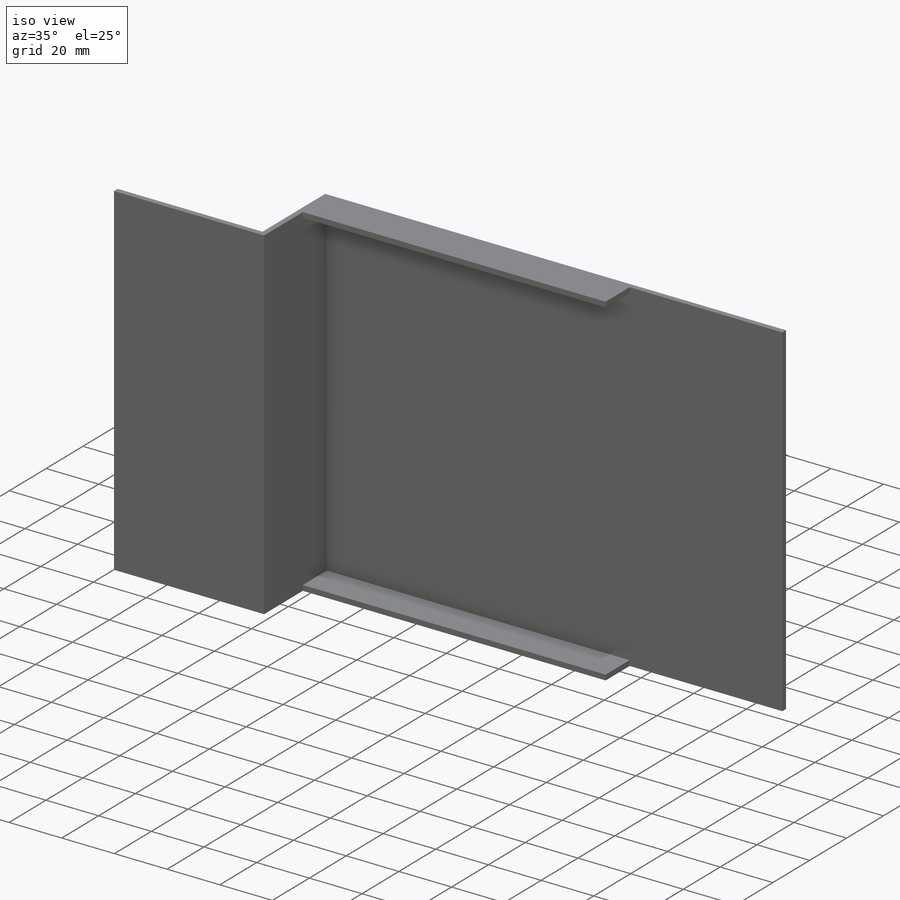
[diagram: iso view]
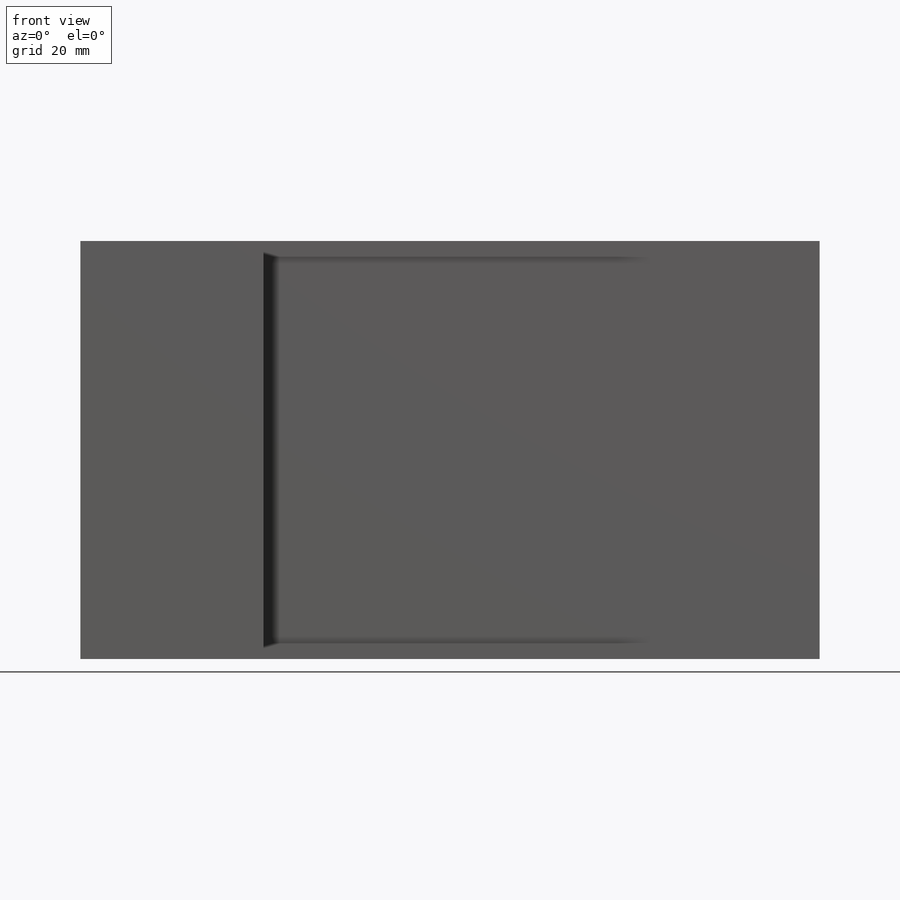
[diagram: front view]
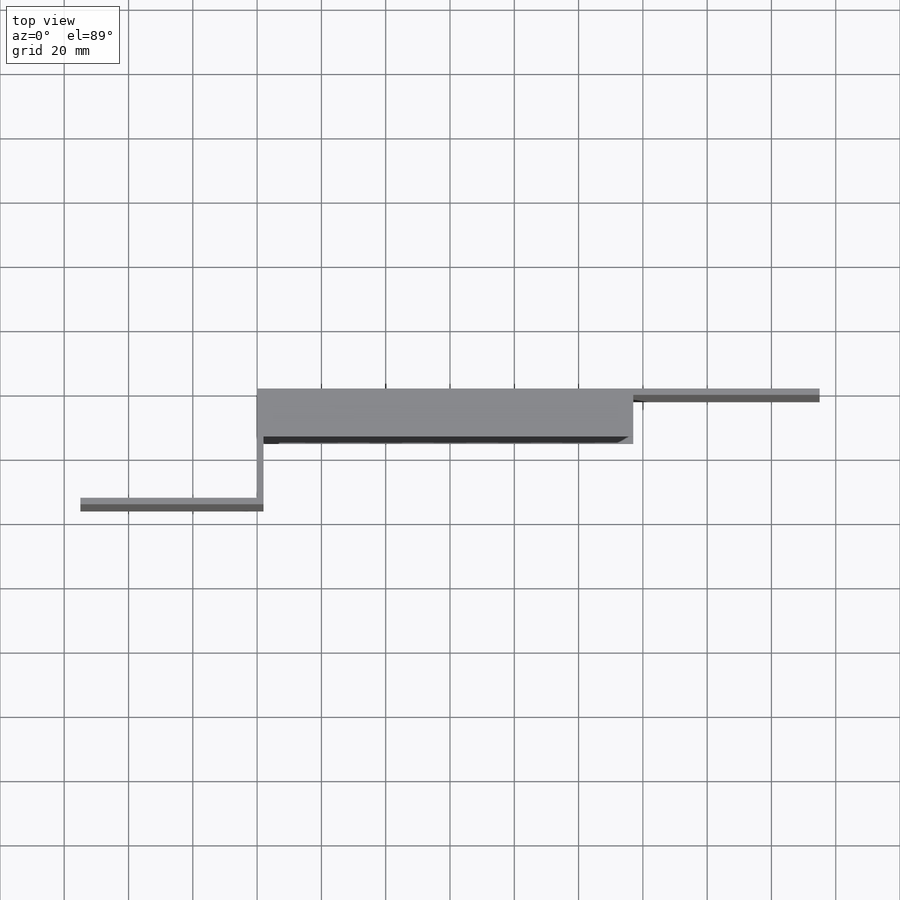
[diagram: top view]
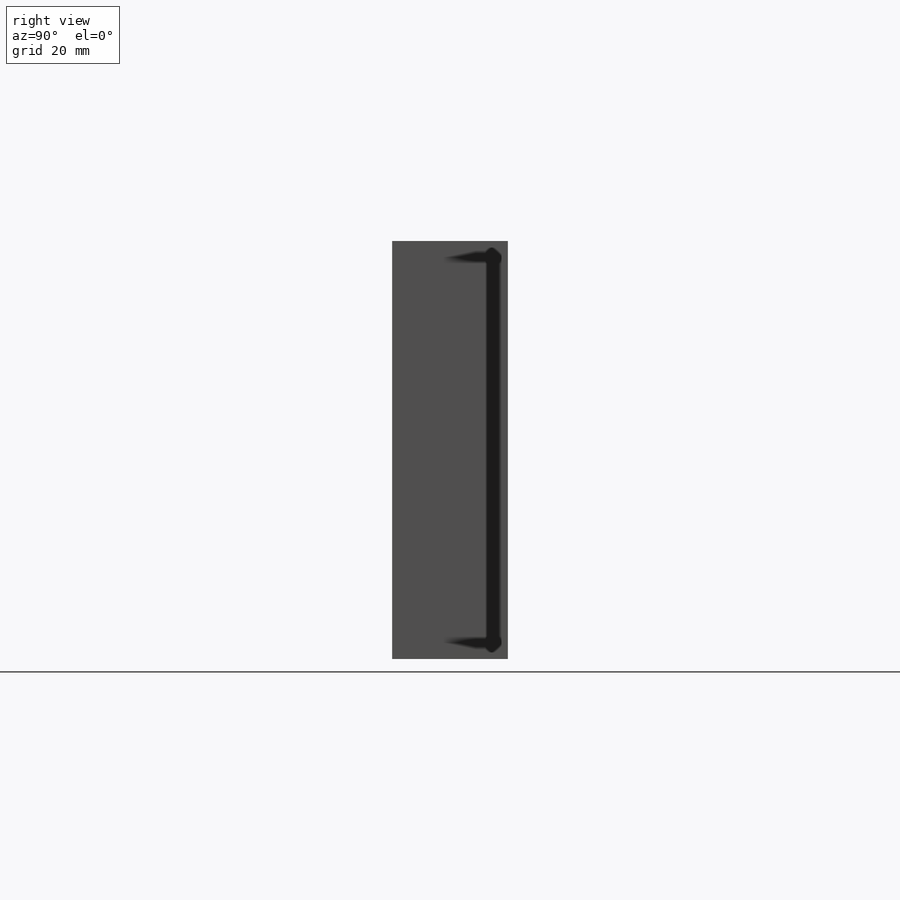
[diagram: right view]
SOLIDWORKS PART (.sldprt)
format: sldprt  version: not decoded by parser v0  size: 155,648 bytes
history: native  units: mm
features: sketch x4, extrude x4, material x1 (+11 scaffold rows collapsed)
feature tree (20):
  scaffold x11  (default folders/planes/origin — collapsed)
  material  "Material <not specified>"
  sketch  "Sketch1"  dims[D1=175.0mm D2=130.0mm]
  extrude  "Boss-Extrude1"  Depth=2mm
  sketch  "Sketch2"  dims[D1=2.0mm]
  extrude  "Boss-Extrude2"  Depth=34mm
  sketch  "Sketch3"  dims[D1=2.0mm]
  extrude  "Boss-Extrude4"  Depth=55mm
  sketch  "Sketch5"  dims[D1=2.0mm D2=0.0mm D3=115.0mm D4=115.0mm D5=2.0mm]
  extrude  "Boss-Extrude5"  Depth=13mm
decode coverage: 8 of 8 modeling features carry decoded parameters
note: suppression state not decoded; provenance and decode notes live in map.json
